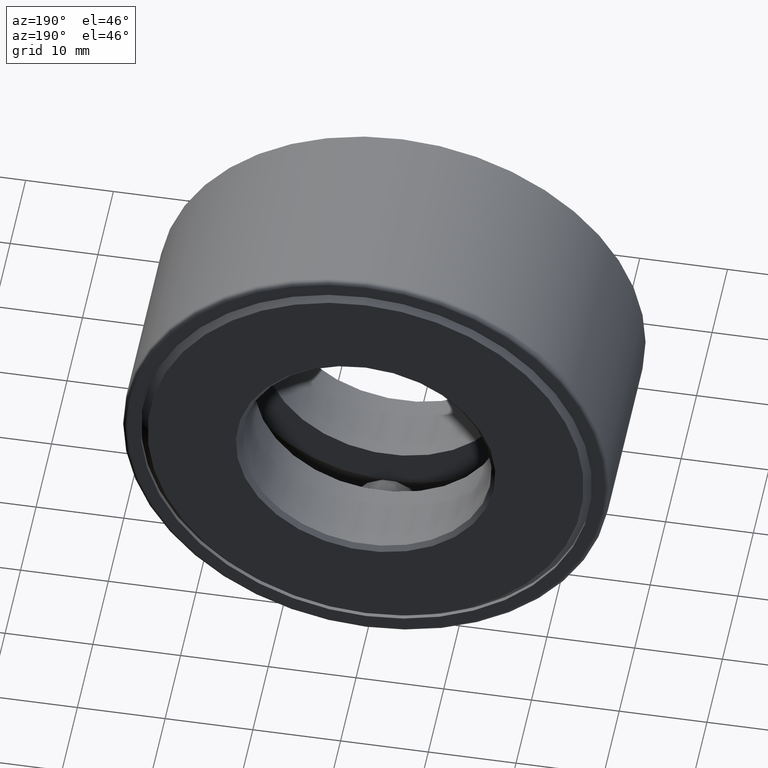
[diagram: clean part render]
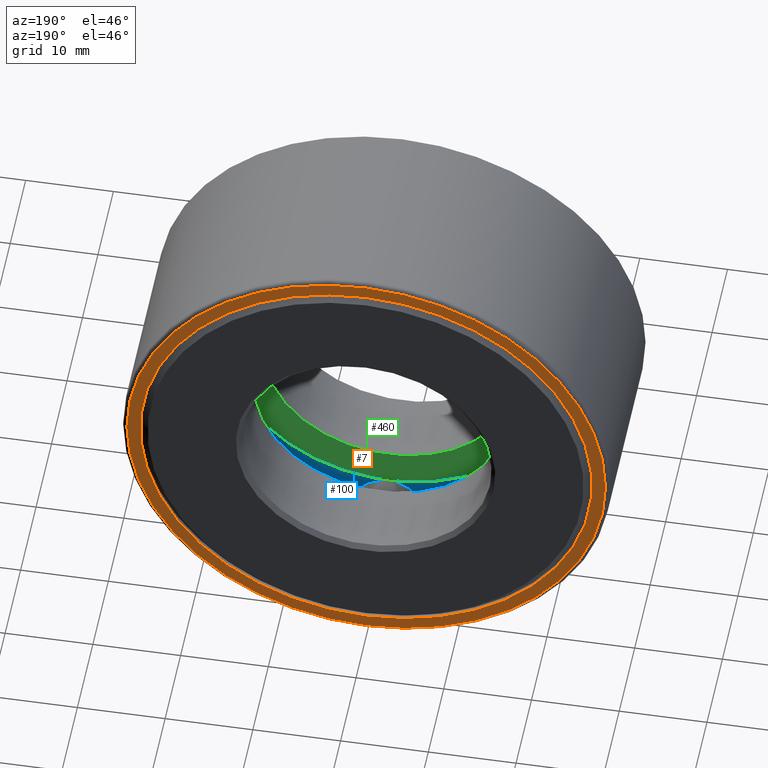
[diagram: same view with three faces highlighted in distinct colors, each labeled with its STEP entity id]
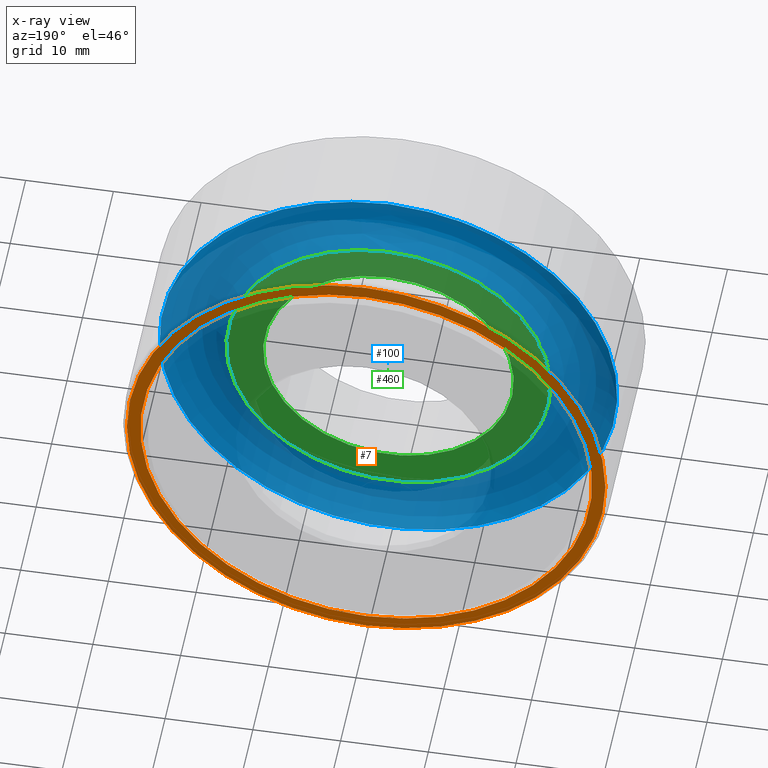
[diagram: x-ray of the same camera — body ghosted, the three highlighted faces saturated]
A machine part, auxiliary view with three faces highlighted in distinct colors.
The next image is the same camera in x-ray (body ghosted, the three faces saturated) — at least one of them is partly hidden behind the body in this view.
Their STEP definitions:

[orange] entity #7 — the highlighted planar face has unit normal (0, -1, 0).
#7 = ADVANCED_FACE ( 'NONE', ( #176, #362 ), #20, .F. ) ;
#15 = EDGE_LOOP ( 'NONE', ( #251 ) ) ;
#20 = PLANE ( 'NONE',  #573 ) ;
#22 = DIRECTION ( 'NONE',  ( 0.0000000000000000000, -1.000000000000000000, 0.0000000000000000000 ) ) ;
#61 = EDGE_LOOP ( 'NONE', ( #527 ) ) ;
#74 = CARTESIAN_POINT ( 'NONE',  ( 0.0000000000000000000, 0.9225000000000001000, 0.0000000000000000000 ) ) ;
#92 = EDGE_CURVE ( 'NONE', #351, #351, #268, .T. ) ;
#141 = CIRCLE ( 'NONE', #313, 1.073750000000000000 ) ;
#160 = CARTESIAN_POINT ( 'NONE',  ( 0.0000000000000000000, 0.9225000000000001000, 0.0000000000000000000 ) ) ;
#176 = FACE_BOUND ( 'NONE', #15, .T. ) ;
#251 = ORIENTED_EDGE ( 'NONE', *, *, #92, .F. ) ;
#268 = CIRCLE ( 'NONE', #526, 1.013750000000000200 ) ;
#290 = DIRECTION ( 'NONE',  ( 0.0000000000000000000, 0.0000000000000000000, 1.000000000000000000 ) ) ;
#313 = AXIS2_PLACEMENT_3D ( 'NONE', #160, #548, #290 ) ;
#341 = CARTESIAN_POINT ( 'NONE',  ( 0.0000000000000000000, 0.9225000000000001000, 1.013750000000000200 ) ) ;
#351 = VERTEX_POINT ( 'NONE', #341 ) ;
#357 = VERTEX_POINT ( 'NONE', #535 ) ;
#358 = DIRECTION ( 'NONE',  ( -0.0000000000000000000, 1.000000000000000000, -0.0000000000000000000 ) ) ;
#362 = FACE_OUTER_BOUND ( 'NONE', #61, .T. ) ;
#411 = CARTESIAN_POINT ( 'NONE',  ( 0.0000000000000000000, 0.9225000000000001000, 0.0000000000000000000 ) ) ;
#441 = DIRECTION ( 'NONE',  ( 0.0000000000000000000, -0.0000000000000000000, -1.000000000000000000 ) ) ;
#526 = AXIS2_PLACEMENT_3D ( 'NONE', #411, #358, #592 ) ;
#527 = ORIENTED_EDGE ( 'NONE', *, *, #583, .T. ) ;
#535 = CARTESIAN_POINT ( 'NONE',  ( 0.0000000000000000000, 0.9225000000000001000, 1.073750000000000000 ) ) ;
#548 = DIRECTION ( 'NONE',  ( -0.0000000000000000000, 1.000000000000000000, -0.0000000000000000000 ) ) ;
#573 = AXIS2_PLACEMENT_3D ( 'NONE', #74, #22, #441 ) ;
#583 = EDGE_CURVE ( 'NONE', #357, #357, #141, .T. ) ;
#592 = DIRECTION ( 'NONE',  ( 0.0000000000000000000, 0.0000000000000000000, 1.000000000000000000 ) ) ;

[blue] entity #100 — the highlighted toroidal blend (fillet) surface has major radius 22.2821 mm and minor (blend) radius 4.7625 mm.
#11 = EDGE_CURVE ( 'NONE', #278, #278, #568, .T. ) ;
#21 = CARTESIAN_POINT ( 'NONE',  ( 0.0000000000000000000, 0.3562499999999999000, 0.7272499999999998400 ) ) ;
#23 = CIRCLE ( 'NONE', #602, 1.027250000000000000 ) ;
#25 = AXIS2_PLACEMENT_3D ( 'NONE', #245, #111, #158 ) ;
#31 = DIRECTION ( 'NONE',  ( 0.0000000000000000000, 0.0000000000000000000, 1.000000000000000000 ) ) ;
#32 = ORIENTED_EDGE ( 'NONE', *, *, #67, .T. ) ;
#67 = EDGE_CURVE ( 'NONE', #466, #466, #23, .T. ) ;
#100 = ADVANCED_FACE ( 'NONE', ( #442, #325 ), #309, .F. ) ;
#111 = DIRECTION ( 'NONE',  ( -0.0000000000000000000, 1.000000000000000000, -0.0000000000000000000 ) ) ;
#158 = DIRECTION ( 'NONE',  ( 0.0000000000000000000, 0.0000000000000000000, 1.000000000000000000 ) ) ;
#175 = DIRECTION ( 'NONE',  ( 0.0000000000000000000, 0.0000000000000000000, 1.000000000000000000 ) ) ;
#245 = CARTESIAN_POINT ( 'NONE',  ( 0.0000000000000000000, 0.3562499999999999000, 0.0000000000000000000 ) ) ;
#258 = CARTESIAN_POINT ( 'NONE',  ( 0.0000000000000000000, 0.3562499999999999000, 0.0000000000000000000 ) ) ;
#278 = VERTEX_POINT ( 'NONE', #21 ) ;
#302 = CARTESIAN_POINT ( 'NONE',  ( 0.0000000000000000000, 0.4687499999999999400, 0.0000000000000000000 ) ) ;
#309 = TOROIDAL_SURFACE ( 'NONE', #468, 0.8772499999999998600, 0.1875000000000000600 ) ;
#325 = FACE_OUTER_BOUND ( 'NONE', #560, .T. ) ;
#414 = DIRECTION ( 'NONE',  ( -0.0000000000000000000, 1.000000000000000000, -0.0000000000000000000 ) ) ;
#442 = FACE_OUTER_BOUND ( 'NONE', #528, .T. ) ;
#466 = VERTEX_POINT ( 'NONE', #580 ) ;
#468 = AXIS2_PLACEMENT_3D ( 'NONE', #302, #414, #31 ) ;
#469 = ORIENTED_EDGE ( 'NONE', *, *, #11, .F. ) ;
#528 = EDGE_LOOP ( 'NONE', ( #469 ) ) ;
#560 = EDGE_LOOP ( 'NONE', ( #32 ) ) ;
#568 = CIRCLE ( 'NONE', #25, 0.7272499999999998400 ) ;
#580 = CARTESIAN_POINT ( 'NONE',  ( 0.0000000000000000000, 0.3562499999999999000, 1.027250000000000000 ) ) ;
#581 = DIRECTION ( 'NONE',  ( -0.0000000000000000000, 1.000000000000000000, -0.0000000000000000000 ) ) ;
#602 = AXIS2_PLACEMENT_3D ( 'NONE', #258, #581, #175 ) ;

[green] entity #460 — the highlighted planar face has unit normal (0, -1, 0).
#11 = EDGE_CURVE ( 'NONE', #278, #278, #568, .T. ) ;
#21 = CARTESIAN_POINT ( 'NONE',  ( 0.0000000000000000000, 0.3562499999999999000, 0.7272499999999998400 ) ) ;
#25 = AXIS2_PLACEMENT_3D ( 'NONE', #245, #111, #158 ) ;
#28 = CARTESIAN_POINT ( 'NONE',  ( 0.0000000000000000000, 0.3562500000000000700, 0.5625000000000001100 ) ) ;
#46 = ORIENTED_EDGE ( 'NONE', *, *, #503, .F. ) ;
#81 = AXIS2_PLACEMENT_3D ( 'NONE', #382, #378, #384 ) ;
#101 = EDGE_LOOP ( 'NONE', ( #511 ) ) ;
#111 = DIRECTION ( 'NONE',  ( -0.0000000000000000000, 1.000000000000000000, -0.0000000000000000000 ) ) ;
#118 = FACE_BOUND ( 'NONE', #285, .T. ) ;
#128 = AXIS2_PLACEMENT_3D ( 'NONE', #479, #281, #531 ) ;
#158 = DIRECTION ( 'NONE',  ( 0.0000000000000000000, 0.0000000000000000000, 1.000000000000000000 ) ) ;
#162 = CIRCLE ( 'NONE', #128, 0.5625000000000001100 ) ;
#244 = VERTEX_POINT ( 'NONE', #28 ) ;
#245 = CARTESIAN_POINT ( 'NONE',  ( 0.0000000000000000000, 0.3562499999999999000, 0.0000000000000000000 ) ) ;
#278 = VERTEX_POINT ( 'NONE', #21 ) ;
#281 = DIRECTION ( 'NONE',  ( -0.0000000000000000000, 1.000000000000000000, -0.0000000000000000000 ) ) ;
#285 = EDGE_LOOP ( 'NONE', ( #46 ) ) ;
#331 = PLANE ( 'NONE',  #81 ) ;
#378 = DIRECTION ( 'NONE',  ( 0.0000000000000000000, -1.000000000000000000, 0.0000000000000000000 ) ) ;
#382 = CARTESIAN_POINT ( 'NONE',  ( -2.953629279948092000E-016, 0.3562500000000000100, 0.0000000000000000000 ) ) ;
#384 = DIRECTION ( 'NONE',  ( 0.0000000000000000000, -0.0000000000000000000, -1.000000000000000000 ) ) ;
#421 = FACE_OUTER_BOUND ( 'NONE', #101, .T. ) ;
#460 = ADVANCED_FACE ( 'NONE', ( #118, #421 ), #331, .F. ) ;
#479 = CARTESIAN_POINT ( 'NONE',  ( 0.0000000000000000000, 0.3562500000000000700, 0.0000000000000000000 ) ) ;
#503 = EDGE_CURVE ( 'NONE', #244, #244, #162, .T. ) ;
#511 = ORIENTED_EDGE ( 'NONE', *, *, #11, .T. ) ;
#531 = DIRECTION ( 'NONE',  ( 0.0000000000000000000, 0.0000000000000000000, 1.000000000000000000 ) ) ;
#568 = CIRCLE ( 'NONE', #25, 0.7272499999999998400 ) ;